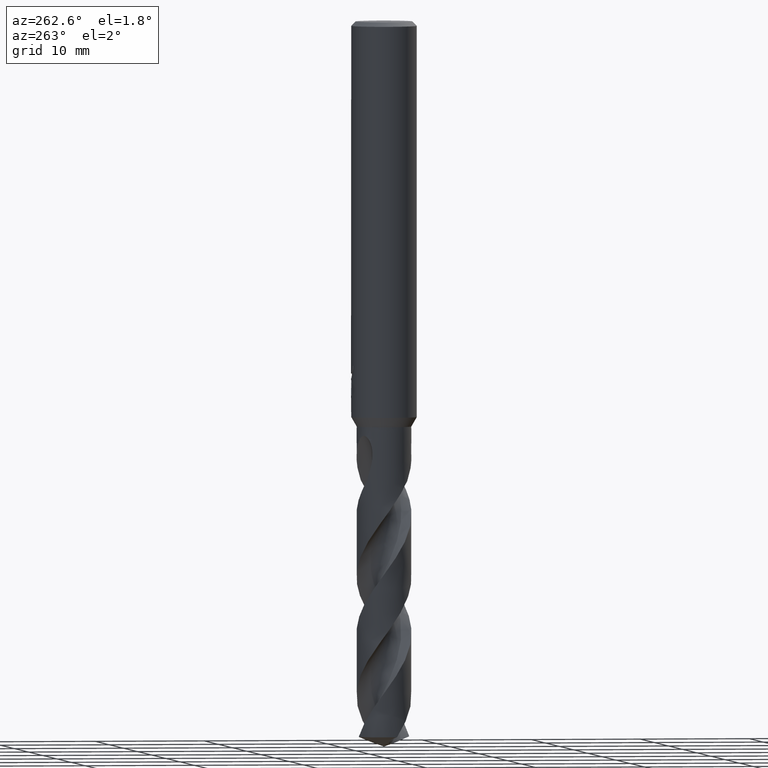
[diagram: clean part render]
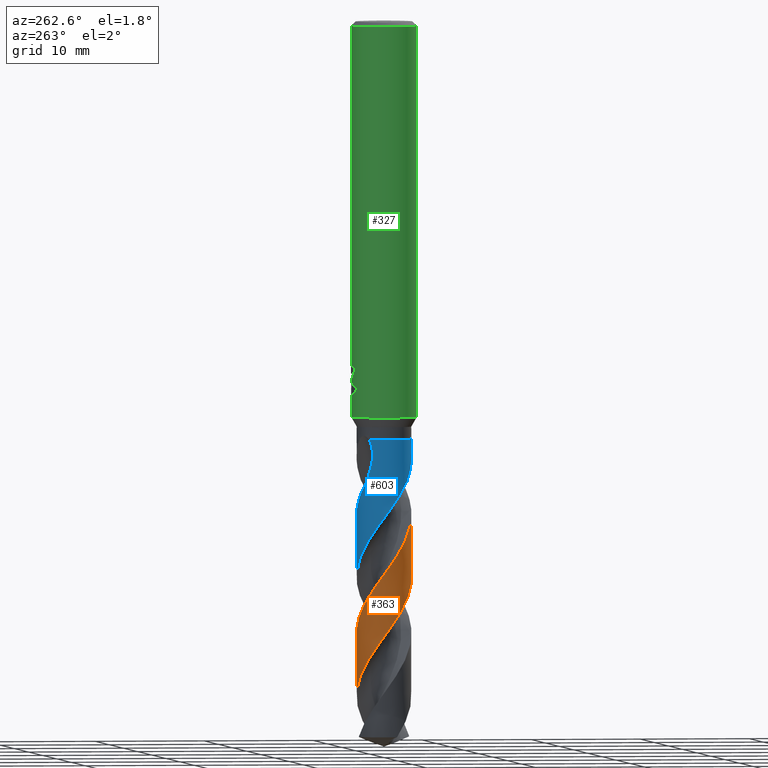
[diagram: same view with three faces highlighted in distinct colors, each labeled with its STEP entity id]
A machine part, auxiliary view with three faces highlighted in distinct colors.
Their STEP definitions:

[orange] entity #363 — the highlighted conical surface has half-angle 0 deg.
#277=VERTEX_POINT('',#768);
#281=EDGE_CURVE('',#277,#429,#772,.T.);
#311=VERTEX_POINT('',#806);
#321=EDGE_CURVE('',#311,#451,#817,.T.);
#363=ADVANCED_FACE('',(#863),#864,.T.);
#429=VERTEX_POINT('',#935);
#451=VERTEX_POINT('',#960);
#541=EDGE_CURVE('',#429,#311,#1060,.T.);
#695=EDGE_CURVE('',#451,#277,#1225,.T.);
#768=CARTESIAN_POINT('',(-1.49229272866229E-012,2.4999846378401,-60.9284538668785));
#772=B_SPLINE_CURVE_WITH_KNOTS('',3,(#1356,#1357,#1358,#1359,#1360,#1361,#1362,#1363,#1364,#1365,#1366,#1367,#1368,#1369,#1370,#1371,#1372,#1373,#1374,#1375,#1376,#1377,#1378,#1379,#1380,#1381,#1382,#1383,#1384,#1385,#1386,#1387,#1388,#1389,#1390,#1391,#1392,#1393,#1394,#1395,#1396,#1397,#1398,#1399,#1400,#1401,#1402,#1403,#1404,#1405,#1406,#1407,#1408,#1409,#1410,#1411,#1412,#1413,#1414,#1415,#1416,#1417,#1418,#1419,#1420,#1421,#1422,#1423,#1424,#1425,#1426,#1427,#1428,#1429,#1430,#1431,#1432,#1433,#1434,#1435,#1436,#1437,#1438,#1439),.UNSPECIFIED.,.F.,.F.,(4,2,2,2,2,2,2,2,2,2,2,2,2,2,2,2,2,2,2,2,2,2,2,2,2,2,2,2,2,2,2,2,2,2,2,2,2,2,2,2,2,4),(0.0,0.705339197520786,0.793382321570578,2.25138278825527,3.00462327397265,4.43627068182508,4.65154079261242,5.90010120325481,6.66712664066002,7.53589064290537,7.96607251350422,8.69509283644515,10.0914412677393,10.1967862482771,11.6549208246733,12.669538107501,13.4584254143811,14.3321507532212,15.0973158277061,16.5459662624766,17.3053546183504,18.0885905116614,18.8115249966454,19.279328148774,19.708212639708,20.6425852317231,21.1109216559262,21.5031201077526,22.7239835989881,23.578576880337,25.9301483865861,26.2469974652199,26.7142829934866,27.2288762379342,27.5732682245291,27.8937227863951,28.088743994366,28.2138346206703,28.3266994819867,28.4725834430864,28.7692788626183,29.2462642896059),.UNSPECIFIED.);
#806=CARTESIAN_POINT('',(5.67745366687904E-014,-2.49992374959582,-44.4337831787576));
#817=B_SPLINE_CURVE_WITH_KNOTS('',3,(#1537,#1538,#1539,#1540,#1541,#1542,#1543,#1544,#1545,#1546,#1547,#1548,#1549,#1550,#1551,#1552,#1553,#1554,#1555,#1556,#1557,#1558,#1559,#1560,#1561,#1562,#1563,#1564,#1565,#1566,#1567,#1568,#1569,#1570,#1571,#1572,#1573,#1574,#1575,#1576,#1577,#1578,#1579,#1580,#1581,#1582,#1583,#1584,#1585,#1586,#1587,#1588,#1589,#1590,#1591,#1592,#1593,#1594,#1595,#1596,#1597,#1598,#1599,#1600,#1601,#1602,#1603,#1604,#1605,#1606,#1607,#1608,#1609,#1610,#1611,#1612,#1613,#1614,#1615,#1616,#1617,#1618,#1619,#1620,#1621,#1622),.UNSPECIFIED.,.F.,.F.,(4,2,2,2,2,2,2,2,2,2,2,2,2,2,2,2,2,2,2,2,2,2,2,2,2,2,2,2,2,2,2,2,2,2,2,2,2,2,2,2,2,2,4),(0.0,0.112260864502837,0.184359362821101,0.213399574215006,0.509736657349901,0.611469455569257,0.67607461145284,0.736403609462447,0.816753332257204,0.905862269064934,0.994709630813049,1.31016933640133,1.52303416237699,1.74012502438616,1.97225138451341,2.5769587221793,3.17582755069472,5.28094098818037,6.25547495015863,6.95390732003399,8.33895148310456,9.04258170054827,9.76890609568415,10.9380613977759,11.4588702272129,12.329443947901,13.7401059158146,14.4385569099418,15.8239700677305,16.527078061405,17.2530805918108,18.3912785093684,19.1171676344524,20.2366142849576,20.8150936552939,21.6680456775689,23.0795614175122,23.7767668212789,25.034613248438,25.982245117534,26.6874134085245,27.7659504028113,28.8549959927232),.UNSPECIFIED.);
#863=FACE_OUTER_BOUND('',#2031,.T.);
#864=CONICAL_SURFACE('',#2032,2.49995,3.69138890024025E-006);
#935=CARTESIAN_POINT('',(4.41179954747735E-014,-2.49994476385777,-50.1265623821918));
#960=CARTESIAN_POINT('',(-6.85427205963761E-014,2.49996362512359,-55.2360933263023));
#1060=LINE('',#3979,#3980);
#1225=LINE('',#4952,#4953);
#1356=CARTESIAN_POINT('',(2.33886570378173,0.883010316855709,-65.0900744143345));
#1357=CARTESIAN_POINT('',(2.29018651938241,1.01194688173756,-64.8995912051756));
#1358=CARTESIAN_POINT('',(2.23092460490224,1.13665062986234,-64.7100951293949));
#1359=CARTESIAN_POINT('',(2.15302469915512,1.27073593422715,-64.4959070597195));
#1360=CARTESIAN_POINT('',(2.1442207592548,1.28553609939877,-64.472111254221));
#1361=CARTESIAN_POINT('',(1.98678778484872,1.54406599651903,-64.0543117836237));
#1362=CARTESIAN_POINT('',(1.79765498664675,1.76071742994334,-63.6691206230355));
#1363=CARTESIAN_POINT('',(1.46106991957155,2.03397333101309,-63.0729881137587));
#1364=CARTESIAN_POINT('',(1.3387134986244,2.11648750832682,-62.8683680680261));
#1365=CARTESIAN_POINT('',(0.964657451981324,2.32332222494383,-62.2793320910932));
#1366=CARTESIAN_POINT('',(0.69897325682646,2.41647387334835,-61.9016570737109));
#1367=CARTESIAN_POINT('',(0.382407185479408,2.47092301410859,-61.4573899510818));
#1368=CARTESIAN_POINT('',(0.340867709908535,2.47699761568448,-61.3992147453919));
#1369=CARTESIAN_POINT('',(0.0563478475743394,2.5112739965807,-61.003299264333));
#1370=CARTESIAN_POINT('',(-0.189608343135859,2.50481682207799,-60.6711720264274));
#1371=CARTESIAN_POINT('',(-0.579565260537321,2.43653634270258,-60.1276073745795));
#1372=CARTESIAN_POINT('',(-0.724948518564298,2.39726021017557,-59.9193839674674));
#1373=CARTESIAN_POINT('',(-1.02506863263222,2.28648165309439,-59.4782613980477));
#1374=CARTESIAN_POINT('',(-1.17831992412939,2.2114564016881,-59.2459558974683));
#1375=CARTESIAN_POINT('',(-1.39467602971787,2.07651048743198,-58.8965223679479));
#1376=CARTESIAN_POINT('',(-1.46390664603325,2.02828694439699,-58.7809489062009));
#1377=CARTESIAN_POINT('',(-1.64327822800571,1.8894094326415,-58.4685922413044));
#1378=CARTESIAN_POINT('',(-1.7483581524877,1.79262949092385,-58.2708240246628));
#1379=CARTESIAN_POINT('',(-2.02940128095464,1.4853431575734,-57.6979776913192));
#1380=CARTESIAN_POINT('',(-2.17925435306539,1.25493433466018,-57.3290026389153));
#1381=CARTESIAN_POINT('',(-2.29705520209781,0.986817472755293,-56.9235364768892));
#1382=CARTESIAN_POINT('',(-2.30507952916041,0.967926413946162,-56.8950832633762));
#1383=CARTESIAN_POINT('',(-2.42113010422204,0.685044448277029,-56.4719082265747));
#1384=CARTESIAN_POINT('',(-2.48356100727685,0.404417834670134,-56.0859939424185));
#1385=CARTESIAN_POINT('',(-2.50659506717053,-0.0800407247237364,-55.4189373381309));
#1386=CARTESIAN_POINT('',(-2.49229892214999,-0.279349955401422,-55.1433153216711));
#1387=CARTESIAN_POINT('',(-2.42492042760174,-0.627386078063755,-54.6568579728654));
#1388=CARTESIAN_POINT('',(-2.38135850488306,-0.776487814845948,-54.4454467138055));
#1389=CARTESIAN_POINT('',(-2.26114064723096,-1.08003494077674,-53.9968472247886));
#1390=CARTESIAN_POINT('',(-2.18185072072324,-1.23235498120629,-53.7593969954083));
#1391=CARTESIAN_POINT('',(-2.00494937631542,-1.50083101470481,-53.3171586147428));
#1392=CARTESIAN_POINT('',(-1.91116266766739,-1.61859837190658,-53.112044618715));
#1393=CARTESIAN_POINT('',(-1.61047048276792,-1.93319634496103,-52.5154743402466));
#1394=CARTESIAN_POINT('',(-1.38013598735321,-2.10382408476296,-52.1229823365801));
#1395=CARTESIAN_POINT('',(-0.99260590740174,-2.29929685617157,-51.5279808320998));
#1396=CARTESIAN_POINT('',(-0.853743195249389,-2.35436476757688,-51.3245139937356));
#1397=CARTESIAN_POINT('',(-0.563799069806127,-2.4403786197949,-50.9082819896367));
#1398=CARTESIAN_POINT('',(-0.412981631343818,-2.47038560908166,-50.6954791630184));
#1399=CARTESIAN_POINT('',(-0.11901365907579,-2.50113763149859,-50.2890201030382));
#1400=CARTESIAN_POINT('',(0.0232164944698478,-2.50387566829468,-50.0950844062439));
#1401=CARTESIAN_POINT('',(0.256853705997476,-2.48841426397878,-49.77417228586));
#1402=CARTESIAN_POINT('',(0.348055349974197,-2.47729039331593,-49.6482845247746));
#1403=CARTESIAN_POINT('',(0.520963507443,-2.44650035895448,-49.4061104721306));
#1404=CARTESIAN_POINT('',(0.602685130837747,-2.42765676547963,-49.2898050791214));
#1405=CARTESIAN_POINT('',(0.859197154920285,-2.35475865633735,-48.9216903022311));
#1406=CARTESIAN_POINT('',(1.02934264093602,-2.28557387656802,-48.6717864102814));
#1407=CARTESIAN_POINT('',(1.27165135869698,-2.15431164505599,-48.2940967555422));
#1408=CARTESIAN_POINT('',(1.34993058627535,-2.10612955998195,-48.1681927189443));
#1409=CARTESIAN_POINT('',(1.4883385472369,-2.01008139786983,-47.9360550917751));
#1410=CARTESIAN_POINT('',(1.5492123002633,-1.96353410862559,-47.8298460469216));
#1411=CARTESIAN_POINT('',(1.78996870490875,-1.7613372557221,-47.395318995317));
#1412=CARTESIAN_POINT('',(1.9496909545453,-1.58285486599002,-47.0717920481496));
#1413=CARTESIAN_POINT('',(2.17448398382074,-1.24468217331734,-46.5144982738418));
#1414=CARTESIAN_POINT('',(2.2526019737145,-1.0968730466019,-46.2833884371949));
#1415=CARTESIAN_POINT('',(2.48803906064716,-0.518638114496798,-45.4222822357989));
#1416=CARTESIAN_POINT('',(2.54062258923928,-0.0555729162293293,-44.8112583819243));
#1417=CARTESIAN_POINT('',(2.45880234864903,0.455723352451119,-44.0945173006001));
#1418=CARTESIAN_POINT('',(2.4468973412289,0.515831332644643,-44.0092168394315));
#1419=CARTESIAN_POINT('',(2.41187184718078,0.663850594871653,-43.7987508428433));
#1420=CARTESIAN_POINT('',(2.38608501919556,0.751429651911781,-43.6736065661477));
#1421=CARTESIAN_POINT('',(2.32136151183696,0.933338264774399,-43.4119001796399));
#1422=CARTESIAN_POINT('',(2.28306880789496,1.02315747934894,-43.2833104282126));
#1423=CARTESIAN_POINT('',(2.21015576180881,1.17009838148852,-43.0614027716611));
#1424=CARTESIAN_POINT('',(2.17906545765208,1.22691164671473,-42.9722679094293));
#1425=CARTESIAN_POINT('',(2.11611124955793,1.33235334070159,-42.7976338622386));
#1426=CARTESIAN_POINT('',(2.08469135568577,1.38087800673129,-42.7129642337649));
#1427=CARTESIAN_POINT('',(2.03294649755781,1.45529685352343,-42.5744180418892));
#1428=CARTESIAN_POINT('',(2.02076851950718,1.47204102932389,-42.5409648806847));
#1429=CARTESIAN_POINT('',(1.99254880361841,1.50985818786231,-42.4690373933075));
#1430=CARTESIAN_POINT('',(1.9811666898461,1.52477099155072,-42.4411907208433));
#1431=CARTESIAN_POINT('',(1.95874872343735,1.55344212704166,-42.3886208636849));
#1432=CARTESIAN_POINT('',(1.94780718237226,1.56714575363147,-42.3639042100505));
#1433=CARTESIAN_POINT('',(1.92194963662612,1.5988184779648,-42.3076760456658));
#1434=CARTESIAN_POINT('',(1.9068374202197,1.61682592622175,-42.2763575164937));
#1435=CARTESIAN_POINT('',(1.85921428427484,1.671909772006,-42.1823545253478));
#1436=CARTESIAN_POINT('',(1.82505699022864,1.70924079166424,-42.1210876010134));
#1437=CARTESIAN_POINT('',(1.72931248242326,1.80725969585964,-41.9648759997831));
#1438=CARTESIAN_POINT('',(1.66442739678851,1.86757587951774,-41.8733433334085));
#1439=CARTESIAN_POINT('',(1.59301279645432,1.9266240155434,-41.785));
#1537=CARTESIAN_POINT('',(1.73763251753517,-1.79727657886597,-41.785));
#1538=CARTESIAN_POINT('',(1.72252333530305,-1.81188450976754,-41.8159612489024));
#1539=CARTESIAN_POINT('',(1.70718617082374,-1.82634501859521,-41.8468795146963));
#1540=CARTESIAN_POINT('',(1.68154298277478,-1.84991098365062,-41.8975809070587));
#1541=CARTESIAN_POINT('',(1.67141317902932,-1.8590692528715,-41.9173653160194));
#1542=CARTESIAN_POINT('',(1.65703232985693,-1.87185662135655,-41.9450887427945));
#1543=CARTESIAN_POINT('',(1.65288519865155,-1.87551971762377,-41.9530420787317));
#1544=CARTESIAN_POINT('',(1.60620232643014,-1.91647797607889,-42.0420979238477));
#1545=CARTESIAN_POINT('',(1.56246716801761,-1.95234792768013,-42.1210954414537));
#1546=CARTESIAN_POINT('',(1.50028167347757,-1.99978310686885,-42.227975883074));
#1547=CARTESIAN_POINT('',(1.48419571491864,-2.01175231019348,-42.2551787188267));
#1548=CARTESIAN_POINT('',(1.45753670999504,-2.03109077354531,-42.2996346269201));
#1549=CARTESIAN_POINT('',(1.44710899818027,-2.03853378536827,-42.3168713218616));
#1550=CARTESIAN_POINT('',(1.42679459870815,-2.0527983694335,-42.3501934975548));
#1551=CARTESIAN_POINT('',(1.41692666331454,-2.05962221572695,-42.3662651215763));
#1552=CARTESIAN_POINT('',(1.39377738134128,-2.07538472771843,-42.4037411168762));
#1553=CARTESIAN_POINT('',(1.38046563646273,-2.08426304220233,-42.4251198296799));
#1554=CARTESIAN_POINT('',(1.35220723016896,-2.10272041107082,-42.4702394281514));
#1555=CARTESIAN_POINT('',(1.33726269703165,-2.11225587309809,-42.4939484196819));
#1556=CARTESIAN_POINT('',(1.30725642988721,-2.13095660651317,-42.5413850380991));
#1557=CARTESIAN_POINT('',(1.2923244978479,-2.14004504858615,-42.5649268475117));
#1558=CARTESIAN_POINT('',(1.22332005301744,-2.18105409024123,-42.6736537518266));
#1559=CARTESIAN_POINT('',(1.16861193977936,-2.21082703702394,-42.7594024168656));
#1560=CARTESIAN_POINT('',(1.07590408055228,-2.25693625153088,-42.9026979906832));
#1561=CARTESIAN_POINT('',(1.03811787140269,-2.27456344180112,-42.9605691828507));
#1562=CARTESIAN_POINT('',(0.960985511374694,-2.30822576491049,-43.0773163559859));
#1563=CARTESIAN_POINT('',(0.921551483921318,-2.32425367031421,-43.1362986553882));
#1564=CARTESIAN_POINT('',(0.8390040255291,-2.3553656240407,-43.2581045466893));
#1565=CARTESIAN_POINT('',(0.796090888358268,-2.37021423763794,-43.320432311903));
#1566=CARTESIAN_POINT('',(0.639376534698698,-2.41969056295324,-43.5458807471));
#1567=CARTESIAN_POINT('',(0.52376972651087,-2.4473157517774,-43.7080488751313));
#1568=CARTESIAN_POINT('',(0.290712059834841,-2.48574152987732,-44.0324353303556));
#1569=CARTESIAN_POINT('',(0.173728396688082,-2.49663090738882,-44.1943179083837));
#1570=CARTESIAN_POINT('',(-0.355258969603241,-2.50860697280931,-44.9235593864885));
#1571=CARTESIAN_POINT('',(-0.763518078083648,-2.41600035109201,-45.4815312883698));
#1572=CARTESIAN_POINT('',(-1.30197298682552,-2.14266978525486,-46.3110638048063));
#1573=CARTESIAN_POINT('',(-1.46172325060606,-2.03700618249477,-46.5731453254474));
#1574=CARTESIAN_POINT('',(-1.7124282504041,-1.82645486623332,-47.0241990257444));
#1575=CARTESIAN_POINT('',(-1.80979502863984,-1.73004530715259,-47.2121272159208));
#1576=CARTESIAN_POINT('',(-2.07544703662313,-1.41982938828046,-47.7733523651048));
#1577=CARTESIAN_POINT('',(-2.21720066132969,-1.1862888779259,-48.1441944793016));
#1578=CARTESIAN_POINT('',(-2.37014142318382,-0.806917133270198,-48.7071592318503));
#1579=CARTESIAN_POINT('',(-2.41103927122509,-0.674999642587216,-48.8963335569884));
#1580=CARTESIAN_POINT('',(-2.47163657768579,-0.401250810810141,-49.2814895592192));
#1581=CARTESIAN_POINT('',(-2.49045213018025,-0.259951396096615,-49.4767087897871));
#1582=CARTESIAN_POINT('',(-2.50795736223287,0.110676771147047,-49.9877567032391));
#1583=CARTESIAN_POINT('',(-2.48731984574039,0.33990093065441,-50.3015001432585));
#1584=CARTESIAN_POINT('',(-2.41265119289138,0.662782306715702,-50.7567138468756));
#1585=CARTESIAN_POINT('',(-2.38358285259224,0.760708154329032,-50.8967340540895));
#1586=CARTESIAN_POINT('',(-2.29020920288703,1.01674146919683,-51.271852605434));
#1587=CARTESIAN_POINT('',(-2.21552212850267,1.17061021820503,-51.5063783220262));
#1588=CARTESIAN_POINT('',(-1.98019957735888,1.55081325226681,-52.1212928079423));
#1589=CARTESIAN_POINT('',(-1.7967370778824,1.76006050497928,-52.4982066592868));
#1590=CARTESIAN_POINT('',(-1.4770632228819,2.02157595699445,-53.0669998620074));
#1591=CARTESIAN_POINT('',(-1.36419782880229,2.09940614803679,-53.2550031556123));
#1592=CARTESIAN_POINT('',(-1.00986821921095,2.30299156290972,-53.8165632892454));
#1593=CARTESIAN_POINT('',(-0.753908621841553,2.39897411049964,-54.1877323344301));
#1594=CARTESIAN_POINT('',(-0.352637915115392,2.4787954483603,-54.7508913869026));
#1595=CARTESIAN_POINT('',(-0.215473381603783,2.49447489545714,-54.9400033887996));
#1596=CARTESIAN_POINT('',(0.0647164103895022,2.50318029136245,-55.3250706796532));
#1597=CARTESIAN_POINT('',(0.207048243522436,2.49542971000956,-55.5202326204788));
#1598=CARTESIAN_POINT('',(0.568580393522606,2.44463391465389,-56.0230316095461));
#1599=CARTESIAN_POINT('',(0.784379146282158,2.38420746395317,-56.3287321982573));
#1600=CARTESIAN_POINT('',(1.12021045813233,2.23947641491702,-56.8310641147544));
#1601=CARTESIAN_POINT('',(1.24581739004214,2.1720968551072,-57.026199557768));
#1602=CARTESIAN_POINT('',(1.54863283591716,1.9747589507911,-57.5239715725305));
#1603=CARTESIAN_POINT('',(1.71594996112536,1.83128955472324,-57.8247579413884));
#1604=CARTESIAN_POINT('',(1.93817520153726,1.58310864327393,-58.2823826843968));
#1605=CARTESIAN_POINT('',(2.00798844690481,1.49355720708313,-58.4379139421343));
#1606=CARTESIAN_POINT('',(2.16505013751213,1.2611053406718,-58.8240279275446));
#1607=CARTESIAN_POINT('',(2.24454505595285,1.11350093817954,-59.053962226006));
#1608=CARTESIAN_POINT('',(2.41489958901247,0.703405976224387,-59.6647036799445));
#1609=CARTESIAN_POINT('',(2.47784934080741,0.432023431873294,-60.0418923218608));
#1610=CARTESIAN_POINT('',(2.50363488443737,0.0196933937977146,-60.6109144037261));
#1611=CARTESIAN_POINT('',(2.50097886872942,-0.117197857899903,-60.7987195115122));
#1612=CARTESIAN_POINT('',(2.46212169595631,-0.498783927510732,-61.3258934330047));
#1613=CARTESIAN_POINT('',(2.40091599958184,-0.739127207020128,-61.6631131779569));
#1614=CARTESIAN_POINT('',(2.2338193918088,-1.1377566552117,-62.2581594987702));
#1615=CARTESIAN_POINT('',(2.14310945946471,-1.30062626711827,-62.5127378022084));
#1616=CARTESIAN_POINT('',(1.95469301301005,-1.56470195337123,-62.9582745862431));
#1617=CARTESIAN_POINT('',(1.86518320287083,-1.67036731272217,-63.1480903350564));
#1618=CARTESIAN_POINT('',(1.61814650371225,-1.91733878363906,-63.6295195009935));
#1619=CARTESIAN_POINT('',(1.45028454642239,-2.04730432846539,-63.9195889519878));
#1620=CARTESIAN_POINT('',(1.08365734364996,-2.26304112289946,-64.5040157659291));
#1621=CARTESIAN_POINT('',(0.886332459629429,-2.34735393689852,-64.7963888537596));
#1622=CARTESIAN_POINT('',(0.680722000651791,-2.40553893292721,-65.0900744143345));
#2031=EDGE_LOOP('',(#5296,#5297,#5298,#5299));
#2032=AXIS2_PLACEMENT_3D('',#5300,#5301,#5302);
#3979=CARTESIAN_POINT('',(3.06328040455955E-016,-2.49995,-51.5450372071672));
#3980=VECTOR('',#5514,1.0);
#4952=CARTESIAN_POINT('',(-3.05962890391696E-016,2.49995,-51.5450372071672));
#4953=VECTOR('',#5677,1.0);
#5296=ORIENTED_EDGE('',*,*,#695,.T.);
#5297=ORIENTED_EDGE('',*,*,#281,.T.);
#5298=ORIENTED_EDGE('',*,*,#541,.T.);
#5299=ORIENTED_EDGE('',*,*,#321,.T.);
#5300=CARTESIAN_POINT('',(0.0,0.0,-51.5450372071672));
#5301=DIRECTION('',(0.0,-0.0,-1.0));
#5302=DIRECTION('',(0.0,1.0,0.0));
#5514=DIRECTION('',(-4.52049830165335E-022,3.69138890023187E-006,0.999999999993187));
#5677=DIRECTION('',(-4.52049830165335E-022,3.69138890023187E-006,-0.999999999993187));

[blue] entity #603 — the highlighted conical surface has half-angle 0 deg.
#343=VERTEX_POINT('',#842);
#347=EDGE_CURVE('',#343,#561,#847,.T.);
#375=VERTEX_POINT('',#876);
#395=EDGE_CURVE('',#637,#469,#898,.T.);
#409=VERTEX_POINT('',#913);
#435=VERTEX_POINT('',#942);
#437=EDGE_CURVE('',#409,#567,#944,.T.);
#469=VERTEX_POINT('',#979);
#497=EDGE_CURVE('',#567,#637,#1011,.T.);
#535=EDGE_CURVE('',#375,#409,#1054,.T.);
#561=VERTEX_POINT('',#1080);
#567=VERTEX_POINT('',#1086);
#603=ADVANCED_FACE('',(#1124),#1125,.T.);
#637=VERTEX_POINT('',#1163);
#665=EDGE_CURVE('',#561,#435,#1193,.T.);
#677=EDGE_CURVE('',#469,#343,#1206,.T.);
#723=EDGE_CURVE('',#435,#375,#1258,.T.);
#842=CARTESIAN_POINT('',(-1.73763251753517,1.79727657886597,-41.785));
#847=B_SPLINE_CURVE_WITH_KNOTS('',3,(#1892,#1893,#1894,#1895,#1896,#1897,#1898,#1899,#1900,#1901,#1902,#1903,#1904,#1905,#1906,#1907,#1908,#1909,#1910,#1911,#1912,#1913,#1914,#1915,#1916,#1917,#1918,#1919,#1920,#1921,#1922,#1923,#1924,#1925,#1926,#1927,#1928,#1929,#1930,#1931,#1932,#1933,#1934,#1935,#1936,#1937,#1938,#1939,#1940,#1941,#1942,#1943,#1944,#1945,#1946,#1947,#1948,#1949,#1950,#1951,#1952,#1953,#1954,#1955,#1956,#1957,#1958,#1959,#1960,#1961,#1962,#1963,#1964,#1965,#1966,#1967,#1968,#1969,#1970,#1971,#1972,#1973,#1974,#1975,#1976,#1977),.UNSPECIFIED.,.F.,.F.,(4,2,2,2,2,2,2,2,2,2,2,2,2,2,2,2,2,2,2,2,2,2,2,2,2,2,2,2,2,2,2,2,2,2,2,2,2,2,2,2,2,2,4),(0.0,0.112260864397981,0.184359363803261,0.213399574284535,0.509736657764034,0.611469456130569,0.676074612108671,0.736403610198,0.816753333084748,0.905862270015692,0.994709631882351,1.31016933782621,1.52303416408569,1.74012502638929,1.97225138631104,2.57695872480792,3.17582754790001,5.2809410103534,6.255474968566,6.95390734003384,8.33895150304389,9.04258172192699,9.76890611807947,10.9380614368724,11.458870248475,12.329443972972,13.7401059421701,14.4385569374902,15.8239700963502,16.5270780909587,17.2530806224029,18.3912785393214,19.1171676654268,20.2366143270635,20.8150936857998,21.6680457080309,23.0795614502067,23.7767668551512,25.0346132842892,25.9822451545084,26.6874134462999,27.7659504420145,28.8549960331307),.UNSPECIFIED.);
#876=CARTESIAN_POINT('',(-1.59301279645432,-1.9266240155434,-41.785));
#898=B_SPLINE_CURVE_WITH_KNOTS('',3,(#2766,#2767,#2768,#2769,#2770,#2771,#2772,#2773),.UNSPECIFIED.,.F.,.F.,(4,2,2,4),(0.0,0.466804786851938,1.12021701218288,1.74699842426996),.UNSPECIFIED.);
#913=CARTESIAN_POINT('',(7.40449683655628E-013,-2.4999041622737,-39.1275630436533));
#942=CARTESIAN_POINT('',(-4.52282263023623E-014,2.49994476385778,-50.1265623821918));
#944=LINE('',#3561,#3562);
#979=CARTESIAN_POINT('',(-2.03401822218082,1.45338036163872,-40.4161889313329));
#1011=CIRCLE('',#3841,2.4999);
#1054=B_SPLINE_CURVE_WITH_KNOTS('',3,(#3958,#3959,#3960,#3961,#3962,#3963,#3964,#3965,#3966,#3967,#3968,#3969,#3970,#3971),.UNSPECIFIED.,.F.,.F.,(4,2,2,2,2,2,4),(0.0,1.22487134503149,1.8936704589557,2.4994231496837,3.20314412049245,4.04846175270952,4.48661916354122),.UNSPECIFIED.);
#1080=CARTESIAN_POINT('',(-4.50061804107274E-014,2.49992374959581,-44.4337831787576));
#1086=CARTESIAN_POINT('',(3.05941161432633E-016,-2.4999,-38.0));
#1124=FACE_OUTER_BOUND('',#4370,.T.);
#1125=CONICAL_SURFACE('',#4371,2.49995,3.69138890024025E-006);
#1163=CARTESIAN_POINT('',(-1.89294965054159,1.63286301645744,-38.0));
#1193=LINE('',#4779,#4780);
#1206=B_SPLINE_CURVE_WITH_KNOTS('',3,(#4812,#4813,#4814,#4815),.UNSPECIFIED.,.F.,.F.,(4,4),(0.0,1.43665684845065),.UNSPECIFIED.);
#1258=B_SPLINE_CURVE_WITH_KNOTS('',3,(#4993,#4994,#4995,#4996,#4997,#4998,#4999,#5000,#5001,#5002,#5003,#5004,#5005,#5006,#5007,#5008,#5009,#5010,#5011,#5012,#5013,#5014,#5015,#5016,#5017,#5018,#5019,#5020,#5021,#5022,#5023,#5024,#5025,#5026,#5027,#5028,#5029,#5030,#5031,#5032,#5033,#5034,#5035,#5036,#5037,#5038,#5039,#5040,#5041,#5042,#5043,#5044,#5045,#5046,#5047,#5048,#5049,#5050,#5051,#5052,#5053,#5054,#5055,#5056,#5057,#5058,#5059,#5060,#5061,#5062,#5063,#5064,#5065,#5066,#5067,#5068,#5069,#5070,#5071,#5072,#5073,#5074),.UNSPECIFIED.,.F.,.F.,(4,2,2,2,2,2,2,2,2,2,2,2,2,2,2,2,2,2,2,2,2,2,2,2,2,2,2,2,2,2,2,2,2,2,2,2,2,2,2,2,4),(0.0,0.705339197067454,0.793382321139927,2.25138278752314,3.00462328712798,4.43626943265148,4.65154013104783,5.90009963176698,6.6671058830871,7.53581158334608,7.96590050155425,8.69394951695833,10.0801426134938,10.1881721412805,11.6492357720889,12.1945071413989,13.4916434380483,14.0841886344595,15.3916855201915,15.9972169755421,17.3497751212634,18.1393860448176,18.8605143900051,19.3125841918353,20.1058236514083,20.8125461307724,22.2865912593847,23.1269554959695,23.5124698716947,25.8935172841633,26.4819857242191,26.9585591441111,27.5557320804792,27.9155669110931,28.0952590369785,28.1166080844096,28.1413705103888,28.1632492416796,28.1908979290136,28.2479506763335,28.3435305855534),.UNSPECIFIED.);
#1892=CARTESIAN_POINT('',(-1.73763251753517,1.79727657886597,-41.785));
#1893=CARTESIAN_POINT('',(-1.72252333531716,1.81188450975389,-41.8159612488735));
#1894=CARTESIAN_POINT('',(-1.70718617085513,1.82634501856555,-41.8468795146329));
#1895=CARTESIAN_POINT('',(-1.68154298267998,1.84991098373826,-41.897580907247));
#1896=CARTESIAN_POINT('',(-1.67141317876823,1.85906925310798,-41.9173653165301));
#1897=CARTESIAN_POINT('',(-1.65703232954043,1.87185662163627,-41.9450887434018));
#1898=CARTESIAN_POINT('',(-1.6528851984722,1.87551971778129,-41.9530420790741));
#1899=CARTESIAN_POINT('',(-1.60620232636707,1.91647797613241,-42.0420979239649));
#1900=CARTESIAN_POINT('',(-1.56246716797805,1.95234792771077,-42.1210954415223));
#1901=CARTESIAN_POINT('',(-1.50028167347057,1.99978310687406,-42.2279758830858));
#1902=CARTESIAN_POINT('',(-1.48419571490945,2.01175231020023,-42.2551787188422));
#1903=CARTESIAN_POINT('',(-1.45753670999042,2.03109077354861,-42.2996346269278));
#1904=CARTESIAN_POINT('',(-1.44710899817522,2.03853378537185,-42.3168713218699));
#1905=CARTESIAN_POINT('',(-1.42679459870447,2.05279836943604,-42.3501934975608));
#1906=CARTESIAN_POINT('',(-1.41692666331163,2.05962221572898,-42.366265121581));
#1907=CARTESIAN_POINT('',(-1.39377738133427,2.07538472772317,-42.4037411168876));
#1908=CARTESIAN_POINT('',(-1.38046563645428,2.08426304220794,-42.4251198296934));
#1909=CARTESIAN_POINT('',(-1.35220723015523,2.1027204110797,-42.4702394281732));
#1910=CARTESIAN_POINT('',(-1.33726269701465,2.11225587310889,-42.4939484197089));
#1911=CARTESIAN_POINT('',(-1.3072564298652,2.13095660652669,-42.5413850381339));
#1912=CARTESIAN_POINT('',(-1.29232449782342,2.14004504860097,-42.5649268475504));
#1913=CARTESIAN_POINT('',(-1.22332005298629,2.18105409025878,-42.6736537518755));
#1914=CARTESIAN_POINT('',(-1.1686119397487,2.21082703703966,-42.7594024169131));
#1915=CARTESIAN_POINT('',(-1.07590408053925,2.25693625153703,-42.9026979907032));
#1916=CARTESIAN_POINT('',(-1.03811787139033,2.27456344180679,-42.9605691828696));
#1917=CARTESIAN_POINT('',(-0.960985511359174,2.308225764917,-43.0773163560093));
#1918=CARTESIAN_POINT('',(-0.921551483904369,2.32425367032093,-43.1362986554134));
#1919=CARTESIAN_POINT('',(-0.839004025607875,2.35536562401067,-43.2581045465728));
#1920=CARTESIAN_POINT('',(-0.796090888532881,2.37021423757732,-43.3204323116492));
#1921=CARTESIAN_POINT('',(-0.639376534975514,2.41969056288015,-43.5458807467084));
#1922=CARTESIAN_POINT('',(-0.523769726785364,2.4473157517187,-43.7080488747472));
#1923=CARTESIAN_POINT('',(-0.290712061321603,2.48574152964552,-44.0324353282882));
#1924=CARTESIAN_POINT('',(-0.173728399406881,2.49663090714221,-44.1943179046256));
#1925=CARTESIAN_POINT('',(0.355258969957849,2.50860697346788,-44.9235593870129));
#1926=CARTESIAN_POINT('',(0.76351808274427,2.41600035035728,-45.4815312945286));
#1927=CARTESIAN_POINT('',(1.30197299347946,2.1426697811221,-46.31106381553));
#1928=CARTESIAN_POINT('',(1.46172325610689,2.03700617845406,-46.573145334837));
#1929=CARTESIAN_POINT('',(1.71242825474656,1.82645486217131,-47.0241990339206));
#1930=CARTESIAN_POINT('',(1.80979503284007,1.73004530276872,-47.2121272242569));
#1931=CARTESIAN_POINT('',(2.07544703988881,1.41982938343384,-47.7733523730699));
#1932=CARTESIAN_POINT('',(2.21720066386726,1.18628887309635,-48.1441944867819));
#1933=CARTESIAN_POINT('',(2.37014142484875,0.806917128396147,-48.7071592389239));
#1934=CARTESIAN_POINT('',(2.41103927264376,0.674999637538866,-48.8963335641817));
#1935=CARTESIAN_POINT('',(2.47163657854173,0.401250805539074,-49.2814895665421));
#1936=CARTESIAN_POINT('',(2.49045213073503,0.259951390782246,-49.4767087971323));
#1937=CARTESIAN_POINT('',(2.50795736213588,-0.110676779446218,-49.9877567146545));
#1938=CARTESIAN_POINT('',(2.48731984448235,-0.339900941854813,-50.3015001586411));
#1939=CARTESIAN_POINT('',(2.41265118995953,-0.662782316827547,-50.7567138613136));
#1940=CARTESIAN_POINT('',(2.38358285035791,-0.760708160842329,-50.8967340635618));
#1941=CARTESIAN_POINT('',(2.29020920139356,-1.01674147264556,-51.2718526106045));
#1942=CARTESIAN_POINT('',(2.21552212654012,-1.17061022199388,-51.506378327884));
#1943=CARTESIAN_POINT('',(1.98019957447149,-1.55081325593043,-52.1212928143052));
#1944=CARTESIAN_POINT('',(1.79673707470065,-1.76006050820629,-52.4982066654968));
#1945=CARTESIAN_POINT('',(1.4770632193138,-2.02157595960438,-53.0669998680844));
#1946=CARTESIAN_POINT('',(1.36419782506063,-2.09940615047098,-53.2550031617408));
#1947=CARTESIAN_POINT('',(1.00986821521097,-2.30299156464392,-53.8165632951909));
#1948=CARTESIAN_POINT('',(0.75390861783778,-2.39897411173886,-54.1877323401761));
#1949=CARTESIAN_POINT('',(0.352637911157766,-2.47879544892285,-54.7508913923925));
#1950=CARTESIAN_POINT('',(0.215473377630436,-2.49447489579981,-54.9400033942706));
#1951=CARTESIAN_POINT('',(-0.0647164143704662,-2.50318029125977,-55.3250706851135));
#1952=CARTESIAN_POINT('',(-0.207048247494991,-2.49542970968005,-55.5202326259576));
#1953=CARTESIAN_POINT('',(-0.56858039697824,-2.44463391380991,-56.0230316144241));
#1954=CARTESIAN_POINT('',(-0.784379149224132,-2.38420746294383,-56.3287322025186));
#1955=CARTESIAN_POINT('',(-1.12021046051182,-2.23947641372666,-56.8310641184024));
#1956=CARTESIAN_POINT('',(-1.24581739234765,-2.17209685378461,-57.026199561421));
#1957=CARTESIAN_POINT('',(-1.54863283957287,-1.97475894813139,-57.5239715787508));
#1958=CARTESIAN_POINT('',(-1.71594996590589,-1.83128955046827,-57.8247579501289));
#1959=CARTESIAN_POINT('',(-1.93817520512301,-1.58310863870926,-58.2823826923513));
#1960=CARTESIAN_POINT('',(-2.00798844882317,-1.49355720431913,-58.4379139467633));
#1961=CARTESIAN_POINT('',(-2.16505013784096,-1.26110534007432,-58.8240279284813));
#1962=CARTESIAN_POINT('',(-2.24454505612968,-1.1135009377857,-59.0539622265998));
#1963=CARTESIAN_POINT('',(-2.41489958907924,-0.703405976010952,-59.6647036802505));
#1964=CARTESIAN_POINT('',(-2.4778493408574,-0.432023431613768,-60.0418923222221));
#1965=CARTESIAN_POINT('',(-2.503634884442,-0.0196933934571156,-60.6109144041946));
#1966=CARTESIAN_POINT('',(-2.50097886871375,0.117197858275783,-60.7987195120287));
#1967=CARTESIAN_POINT('',(-2.46212169587073,0.498783927950691,-61.3258934336175));
#1968=CARTESIAN_POINT('',(-2.40091599944267,0.739127207484304,-61.663113178621));
#1969=CARTESIAN_POINT('',(-2.23381939159023,1.13775665563353,-62.2581594994216));
#1970=CARTESIAN_POINT('',(-2.14310945923877,1.3006262674841,-62.5127378027975));
#1971=CARTESIAN_POINT('',(-1.95469301279321,1.56470195363854,-62.958274586715));
#1972=CARTESIAN_POINT('',(-1.8651832026667,1.67036731294681,-63.1480903354741));
#1973=CARTESIAN_POINT('',(-1.61814650352558,1.91733878379423,-63.6295195013268));
#1974=CARTESIAN_POINT('',(-1.45028454623987,2.04730432859257,-63.9195889522927));
#1975=CARTESIAN_POINT('',(-1.08365734352574,2.26304112295259,-64.5040157661129));
#1976=CARTESIAN_POINT('',(-0.88633245956452,2.34735393691689,-64.7963888538523));
#1977=CARTESIAN_POINT('',(-0.680722000651791,2.40553893292721,-65.0900744143345));
#2766=CARTESIAN_POINT('',(-1.89294965054159,1.63286301645744,-38.0));
#2767=CARTESIAN_POINT('',(-1.95470844159128,1.56126782423688,-38.1235792730907));
#2768=CARTESIAN_POINT('',(-2.00344577584956,1.49656610404442,-38.277223858844));
#2769=CARTESIAN_POINT('',(-2.09117261224026,1.37271526928276,-38.7006381012966));
#2770=CARTESIAN_POINT('',(-2.12042170302936,1.32414080810256,-39.0000700500356));
#2771=CARTESIAN_POINT('',(-2.12488832539141,1.31696518674969,-39.6560132978575));
#2772=CARTESIAN_POINT('',(-2.10400949258269,1.35542445368482,-40.0181090060009));
#2773=CARTESIAN_POINT('',(-2.03401822218082,1.45338036163873,-40.4161889313329));
#3561=CARTESIAN_POINT('',(3.05947284464402E-016,-2.49995,-51.5450372071672));
#3562=VECTOR('',#5372,1.0);
#3841=AXIS2_PLACEMENT_3D('',#5454,#5455,#5456);
#3958=CARTESIAN_POINT('',(-1.59301279645432,-1.9266240155434,-41.785));
#3959=CARTESIAN_POINT('',(-1.42810890895895,-2.06297173670078,-41.4372686424366));
#3960=CARTESIAN_POINT('',(-1.23850396307915,-2.18417752815992,-41.1130710216752));
#3961=CARTESIAN_POINT('',(-0.907887514823849,-2.33273979380253,-40.5714825716518));
#3962=CARTESIAN_POINT('',(-0.788916400666737,-2.37547539181747,-40.3809353995761));
#3963=CARTESIAN_POINT('',(-0.558604370020976,-2.43934441173361,-40.0120901649774));
#3964=CARTESIAN_POINT('',(-0.44829161832696,-2.46190905945035,-39.8355107915733));
#3965=CARTESIAN_POINT('',(-0.20951328184251,-2.4944746300709,-39.4549417195726));
#3966=CARTESIAN_POINT('',(-0.0790527645682052,-2.50212001513107,-39.2479728388036));
#3967=CARTESIAN_POINT('',(0.210665456619861,-2.49602519936687,-38.8052023996043));
#3968=CARTESIAN_POINT('',(0.382438157885558,-2.4771760560147,-38.5532640287168));
#3969=CARTESIAN_POINT('',(0.651860622151955,-2.41526150425024,-38.2153659264753));
#3970=CARTESIAN_POINT('',(0.751088758238555,-2.38692643364793,-38.1008277311453));
#3971=CARTESIAN_POINT('',(0.854254278690823,-2.34941474357731,-38.0));
#4370=EDGE_LOOP('',(#5569,#5570,#5571,#5572,#5573,#5574,#5575,#5576));
#4371=AXIS2_PLACEMENT_3D('',#5577,#5578,#5579);
#4779=CARTESIAN_POINT('',(-3.06343646383248E-016,2.49995,-51.5450372071672));
#4780=VECTOR('',#5651,1.0);
#4812=CARTESIAN_POINT('',(-2.03401822223344,1.45338036156508,-40.4161889313619));
#4813=CARTESIAN_POINT('',(-1.95342629766734,1.56617235840346,-40.8745712395932));
#4814=CARTESIAN_POINT('',(-1.85629255985419,1.68255205795631,-41.3356808187035));
#4815=CARTESIAN_POINT('',(-1.73763251753517,1.79727657886597,-41.785));
#4993=CARTESIAN_POINT('',(-2.33886570378176,-0.883010316855671,-65.0900744143346));
#4994=CARTESIAN_POINT('',(-2.29018651941373,-1.01194688165468,-64.899591205298));
#4995=CARTESIAN_POINT('',(-2.23092460497212,-1.13665062971624,-64.7100951296172));
#4996=CARTESIAN_POINT('',(-2.1530246992714,-1.27073593403021,-64.4959070600355));
#4997=CARTESIAN_POINT('',(-2.14422075936886,-1.28553609920864,-64.4721112545271));
#4998=CARTESIAN_POINT('',(-1.98678778498846,-1.54406599633667,-64.0543117839365));
#4999=CARTESIAN_POINT('',(-1.7976549868061,-1.76071742978131,-63.6691206233433));
#5000=CARTESIAN_POINT('',(-1.46106991761269,-2.03397333262025,-63.0729881102762));
#5001=CARTESIAN_POINT('',(-1.33871349423607,-2.11648751129627,-62.8683680607111));
#5002=CARTESIAN_POINT('',(-0.964657660492261,-2.32332210861559,-62.2793324202098));
#5003=CARTESIAN_POINT('',(-0.698973713689662,-2.41647371340849,-61.9016577222645));
#5004=CARTESIAN_POINT('',(-0.382407781231478,-2.47092292387326,-61.4573907860452));
#5005=CARTESIAN_POINT('',(-0.340868195840411,-2.47699755069347,-61.3992154232817));
#5006=CARTESIAN_POINT('',(-0.056348433135587,-2.51127396344896,-61.0033000692642));
#5007=CARTESIAN_POINT('',(0.189607553031624,-2.50481686222219,-60.6711730976838));
#5008=CARTESIAN_POINT('',(0.579560574119715,-2.43653722360843,-60.1276139254984));
#5009=CARTESIAN_POINT('',(0.72494026829224,-2.39726246546098,-59.9193957858108));
#5010=CARTESIAN_POINT('',(1.02504655634025,-2.28649069645021,-59.4782941951181));
#5011=CARTESIAN_POINT('',(1.17828835600058,-2.21147233878619,-59.2460040832562));
#5012=CARTESIAN_POINT('',(1.39462177848924,-2.07654618220098,-58.8966113737013));
#5013=CARTESIAN_POINT('',(1.46383890757014,-2.02833508442498,-58.7810628734268));
#5014=CARTESIAN_POINT('',(1.64305173694417,-1.88959207455748,-58.4689934029809));
#5015=CARTESIAN_POINT('',(1.7480041829164,-1.79295929273067,-58.271490477962));
#5016=CARTESIAN_POINT('',(2.02765337381636,-1.48736283540185,-57.7016448403498));
#5017=CARTESIAN_POINT('',(2.17675215974187,-1.2588531611843,-57.3352544267904));
#5018=CARTESIAN_POINT('',(2.29468417630767,-0.992329559019766,-56.9318510739895));
#5019=CARTESIAN_POINT('',(2.30295054965085,-0.97299133897287,-56.9026920016989));
#5020=CARTESIAN_POINT('',(2.41974444841605,-0.68991523508859,-56.4788123552638));
#5021=CARTESIAN_POINT('',(2.4827461711198,-0.409412690495787,-56.0928565758128));
#5022=CARTESIAN_POINT('',(2.50218422872534,-0.0171166163841849,-55.5527197643311));
#5023=CARTESIAN_POINT('',(2.50061848827988,0.0894609548753868,-55.4051585521973));
#5024=CARTESIAN_POINT('',(2.47258558300501,0.447144106676024,-54.909605765415));
#5025=CARTESIAN_POINT('',(2.4148013680497,0.694737030915162,-54.5668861005288));
#5026=CARTESIAN_POINT('',(2.27760108182114,1.03716435036888,-54.0599008925659));
#5027=CARTESIAN_POINT('',(2.22728008054499,1.14115918632063,-53.9000618284899));
#5028=CARTESIAN_POINT('',(2.04420851600865,1.46130061996071,-53.390712037741));
#5029=CARTESIAN_POINT('',(1.88533901313571,1.66131855510462,-53.0464639324678));
#5030=CARTESIAN_POINT('',(1.61227982878016,1.91421004200908,-52.5348963107895));
#5031=CARTESIAN_POINT('',(1.52051473189964,1.9878476797528,-52.3720603472176));
#5032=CARTESIAN_POINT('',(1.20901208157233,2.20376702993984,-51.8487820122252));
#5033=CARTESIAN_POINT('',(0.971688557130232,2.31825566416415,-51.4941662036529));
#5034=CARTESIAN_POINT('',(0.574074081387713,2.43795087913269,-50.9228469333753));
#5035=CARTESIAN_POINT('',(0.423951345468637,2.46849021318531,-50.7108135997946));
#5036=CARTESIAN_POINT('',(0.132737446093259,2.50033233182608,-50.3078546606294));
#5037=CARTESIAN_POINT('',(-0.00744624843985667,2.50385953433475,-50.1166243972868));
#5038=CARTESIAN_POINT('',(-0.235072303680106,2.49041743578429,-49.804154112705));
#5039=CARTESIAN_POINT('',(-0.322300937021889,2.48062603910392,-49.6839194969346));
#5040=CARTESIAN_POINT('',(-0.560271952156856,2.4411909636006,-49.3516434524049));
#5041=CARTESIAN_POINT('',(-0.709375224730758,2.40213008065173,-49.1384821213758));
#5042=CARTESIAN_POINT('',(-0.98317152774021,2.30258834019788,-48.7380818490494));
#5043=CARTESIAN_POINT('',(-1.10817670215267,2.24511367155772,-48.5504571866369));
#5044=CARTESIAN_POINT('',(-1.4776600538367,2.0367646061557,-47.9688885383383));
#5045=CARTESIAN_POINT('',(-1.70122474260381,1.85412109082809,-47.5737327089783));
#5046=CARTESIAN_POINT('',(-1.99616335626811,1.51384661083037,-46.9566524289922));
#5047=CARTESIAN_POINT('',(-2.09065772907504,1.38033475722806,-46.7341315470007));
#5048=CARTESIAN_POINT('',(-2.20836769235021,1.17403016729757,-46.4065933733178));
#5049=CARTESIAN_POINT('',(-2.24235575534413,1.10771172241147,-46.3032037168182));
#5050=CARTESIAN_POINT('',(-2.46440497019878,0.622373707279598,-45.5649438217405));
#5051=CARTESIAN_POINT('',(-2.53689484101531,0.15942215533147,-44.9506343893688));
#5052=CARTESIAN_POINT('',(-2.46865486738844,-0.410223194938036,-44.1590448383229));
#5053=CARTESIAN_POINT('',(-2.44753224229699,-0.521604767257759,-44.0012674652668));
#5054=CARTESIAN_POINT('',(-2.39566460204549,-0.720306041270175,-43.7181079108659));
#5055=CARTESIAN_POINT('',(-2.367409825996,-0.808501262630983,-43.5917896803095));
#5056=CARTESIAN_POINT('',(-2.2921215634324,-1.00470770934608,-43.308547468957));
#5057=CARTESIAN_POINT('',(-2.24349532738679,-1.10898136845446,-43.1578285819941));
#5058=CARTESIAN_POINT('',(-2.15326583726819,-1.27198428116621,-42.8993481075791));
#5059=CARTESIAN_POINT('',(-2.1175666436352,-1.33039309085748,-42.8017300139555));
#5060=CARTESIAN_POINT('',(-2.06214467795192,-1.41359606396385,-42.6525047179898));
#5061=CARTESIAN_POINT('',(-2.04345011854873,-1.44046235586593,-42.6025385631179));
#5062=CARTESIAN_POINT('',(-2.02233273510932,-1.46961519980199,-42.5461035415484));
#5063=CARTESIAN_POINT('',(-2.01551642420652,-1.47903259207708,-42.5277380610302));
#5064=CARTESIAN_POINT('',(-1.99471950686108,-1.5069926528753,-42.4744216398202));
#5065=CARTESIAN_POINT('',(-1.98318630155062,-1.52214706326465,-42.4460597634404));
#5066=CARTESIAN_POINT('',(-1.96067864081638,-1.55100453566303,-42.3930469474543));
#5067=CARTESIAN_POINT('',(-1.94981519695124,-1.56464560566354,-42.3683950926759));
#5068=CARTESIAN_POINT('',(-1.92446653391734,-1.59577896060922,-42.3130159374346));
#5069=CARTESIAN_POINT('',(-1.90981001707499,-1.61330353828892,-42.2824627816051));
#5070=CARTESIAN_POINT('',(-1.86321241132956,-1.66743255269772,-42.1898301555769));
#5071=CARTESIAN_POINT('',(-1.82964914944576,-1.7043004560509,-42.1291412409542));
#5072=CARTESIAN_POINT('',(-1.73317511116033,-1.80366253559055,-41.9703392436052));
#5073=CARTESIAN_POINT('',(-1.66656418716018,-1.86580910510559,-41.8759866470075));
#5074=CARTESIAN_POINT('',(-1.59301279645432,-1.9266240155434,-41.785));
#5372=DIRECTION('',(-4.52049830165335E-022,3.69138890023187E-006,0.999999999993187));
#5454=CARTESIAN_POINT('',(0.0,0.0,-38.0));
#5455=DIRECTION('',(0.0,0.0,-1.0));
#5456=DIRECTION('',(0.0,1.0,0.0));
#5569=ORIENTED_EDGE('',*,*,#665,.T.);
#5570=ORIENTED_EDGE('',*,*,#723,.T.);
#5571=ORIENTED_EDGE('',*,*,#535,.T.);
#5572=ORIENTED_EDGE('',*,*,#437,.T.);
#5573=ORIENTED_EDGE('',*,*,#497,.T.);
#5574=ORIENTED_EDGE('',*,*,#395,.T.);
#5575=ORIENTED_EDGE('',*,*,#677,.T.);
#5576=ORIENTED_EDGE('',*,*,#347,.T.);
#5577=CARTESIAN_POINT('',(0.0,0.0,-51.5450372071672));
#5578=DIRECTION('',(0.0,-0.0,-1.0));
#5579=DIRECTION('',(0.0,1.0,0.0));
#5651=DIRECTION('',(-4.52049830165335E-022,3.69138890023187E-006,-0.999999999993187));

[green] entity #327 — the highlighted cylindrical surface (edge-blend (fillet) strip) has radius 3 mm, axis along (-0, -0, 1).
#275=VERTEX_POINT('',#766);
#283=VERTEX_POINT('',#774);
#295=VERTEX_POINT('',#789);
#323=EDGE_CURVE('',#671,#565,#819,.T.);
#327=ADVANCED_FACE('',(#824),#825,.T.);
#337=EDGE_CURVE('',#663,#477,#836,.T.);
#339=VERTEX_POINT('',#838);
#371=EDGE_CURVE('',#565,#283,#872,.T.);
#391=EDGE_CURVE('',#283,#663,#894,.T.);
#417=VERTEX_POINT('',#921);
#427=EDGE_CURVE('',#295,#275,#933,.T.);
#465=EDGE_CURVE('',#417,#483,#975,.T.);
#477=VERTEX_POINT('',#988);
#483=VERTEX_POINT('',#994);
#519=EDGE_CURVE('',#275,#671,#1037,.T.);
#527=EDGE_CURVE('',#295,#483,#1045,.T.);
#537=VERTEX_POINT('',#1056);
#549=EDGE_CURVE('',#339,#417,#1068,.T.);
#565=VERTEX_POINT('',#1084);
#577=EDGE_CURVE('',#621,#537,#1097,.T.);
#621=VERTEX_POINT('',#1144);
#645=EDGE_CURVE('',#477,#621,#1172,.T.);
#663=VERTEX_POINT('',#1191);
#671=VERTEX_POINT('',#1200);
#691=EDGE_CURVE('',#537,#339,#1221,.T.);
#766=CARTESIAN_POINT('',(3.67381906146713E-016,-3.0,-0.399999999999999));
#774=CARTESIAN_POINT('',(-0.486378944383045,2.96031003823262,-31.6432837483006));
#789=CARTESIAN_POINT('',(3.67381906146713E-016,-3.0,-36.0));
#819=LINE('',#1625,#1626);
#824=FACE_OUTER_BOUND('',#1631,.T.);
#825=CYLINDRICAL_SURFACE('',#1632,3.0);
#836=CIRCLE('',#1866,3.0);
#838=CARTESIAN_POINT('',(-1.337052752443,2.68557069115386,-33.3720803908795));
#872=B_SPLINE_CURVE_WITH_KNOTS('',3,(#2043,#2044,#2045,#2046,#2047,#2048,#2049,#2050,#2051,#2052,#2053,#2054,#2055,#2056,#2057,#2058,#2059,#2060,#2061,#2062,#2063,#2064,#2065,#2066,#2067,#2068,#2069),.UNSPECIFIED.,.F.,.F.,(4,2,3,2,2,2,2,2,2,2,2,2,4),(-0.54422824842136,-0.27211412421068,0.0,0.272114124210678,0.544228248421357,0.817906359646673,1.09158447087199,1.36255924571499,1.63353402055798,1.90530456554772,2.17707511053746,2.4488456555272,2.72061620051693),.UNSPECIFIED.);
#894=B_SPLINE_CURVE_WITH_KNOTS('',3,(#2719,#2720,#2721,#2722,#2723,#2724,#2725,#2726,#2727,#2728,#2729,#2730,#2731,#2732,#2733,#2734,#2735,#2736,#2737,#2738,#2739,#2740,#2741,#2742,#2743,#2744,#2745),.UNSPECIFIED.,.F.,.F.,(4,2,3,2,2,2,2,2,2,2,2,2,4),(-0.54422824842136,-0.27211412421068,0.0,0.272114124210678,0.544228248421357,0.817906359646673,1.09158447087199,1.36255924571499,1.63353402055798,1.90530456554772,2.17707511053746,2.4488456555272,2.72061620051693),.UNSPECIFIED.);
#921=CARTESIAN_POINT('',(-2.46407913303377E-016,3.0,-34.0310253601033));
#933=LINE('',#3547,#3548);
#975=LINE('',#3682,#3683);
#988=CARTESIAN_POINT('',(-1.0350734039088,2.81578107254819,-31.3171221986971));
#994=CARTESIAN_POINT('',(0.0,3.0,-36.0));
#1037=CIRCLE('',#3888,3.0);
#1045=CIRCLE('',#3913,3.0);
#1056=CARTESIAN_POINT('',(-3.67366600472444E-016,3.0,-32.7128911336578));
#1068=B_SPLINE_CURVE_WITH_KNOTS('',3,(#3992,#3993,#3994,#3995,#3996,#3997,#3998,#3999,#4000,#4001,#4002,#4003,#4004,#4005,#4006,#4007),.UNSPECIFIED.,.F.,.F.,(4,2,2,2,2,2,2,4),(5.66023402257373,6.29060333517104,6.60504483258975,6.91948633000846,7.23392782742717,7.54836932484587,7.86141901111221,8.17446869737855),.UNSPECIFIED.);
#1084=CARTESIAN_POINT('',(-1.20768269592175E-015,3.0,-32.0232688117743));
#1097=LINE('',#4220,#4221);
#1144=CARTESIAN_POINT('',(-2.06254272401587E-016,3.0,-32.5000801551881));
#1172=B_SPLINE_CURVE_WITH_KNOTS('',3,(#4729,#4730,#4731,#4732,#4733,#4734,#4735,#4736,#4737,#4738,#4739,#4740,#4741,#4742),.UNSPECIFIED.,.F.,.F.,(4,2,2,2,2,2,4),(3.16026050654945,3.61086409539206,4.06146768423468,4.51207127307729,4.95991823802074,5.40776520296419,5.86282890530594),.UNSPECIFIED.);
#1191=CARTESIAN_POINT('',(-0.562333990228013,2.94682549253162,-31.3171221986971));
#1200=CARTESIAN_POINT('',(0.0,3.0,-0.399999999999999));
#1221=ELLIPSE('',#4946,3.34478529612858,3.0);
#1625=CARTESIAN_POINT('',(-3.67381906146713E-016,3.0,-18.2));
#1626=VECTOR('',#5239,1.0);
#1631=EDGE_LOOP('',(#5249,#5250,#5251,#5252,#5253,#5254,#5255,#5256,#5257,#5258,#5259,#5260));
#1632=AXIS2_PLACEMENT_3D('',#5261,#5262,#5263);
#1866=AXIS2_PLACEMENT_3D('',#5275,#5276,#5277);
#2043=CARTESIAN_POINT('',(0.665621182276714,2.92522622060321,-30.8140957881762));
#2044=CARTESIAN_POINT('',(0.728850563417096,2.91083867849353,-30.877518087557));
#2045=CARTESIAN_POINT('',(0.783900459387161,2.89602337967411,-30.9578702196133));
#2046=CARTESIAN_POINT('',(0.857188692916628,2.87518328740958,-31.1345580124299));
#2047=CARTESIAN_POINT('',(0.875400981188567,2.86943777108584,-31.2309373045166));
#2048=CARTESIAN_POINT('',(0.875400981188567,2.86943777108584,-31.3216420125868));
#2049=CARTESIAN_POINT('',(0.875400981188567,2.86943777108584,-31.412346720657));
#2050=CARTESIAN_POINT('',(0.857188692916629,2.87518328740958,-31.5087260127437));
#2051=CARTESIAN_POINT('',(0.783900459387161,2.89602337967411,-31.6854138055602));
#2052=CARTESIAN_POINT('',(0.728850563417096,2.91083867849353,-31.7657659376165));
#2053=CARTESIAN_POINT('',(0.60202838769231,2.93969645569731,-31.8929750586276));
#2054=CARTESIAN_POINT('',(0.5214778595293,2.95568533572518,-31.9483797636259));
#2055=CARTESIAN_POINT('',(0.34429909105015,2.98152194310932,-32.0221641076746));
#2056=CARTESIAN_POINT('',(0.247628172090375,2.99115403786358,-32.0405166027747));
#2057=CARTESIAN_POINT('',(0.0663244946631877,3.00062654348629,-32.0405166027747));
#2058=CARTESIAN_POINT('',(-0.0299285908853379,3.00115720326599,-32.0224875186921));
#2059=CARTESIAN_POINT('',(-0.206881310600538,2.99416773126077,-31.949244373347));
#2060=CARTESIAN_POINT('',(-0.287593937381961,2.98687212067831,-31.8940404490632));
#2061=CARTESIAN_POINT('',(-0.415200117492864,2.97182576996222,-31.7666805419979));
#2062=CARTESIAN_POINT('',(-0.470604049431396,2.96309385107775,-31.6859121102136));
#2063=CARTESIAN_POINT('',(-0.544183869965539,2.95046729924835,-31.5086992019516));
#2064=CARTESIAN_POINT('',(-0.562348199187247,2.94682278104247,-31.41223219425));
#2065=CARTESIAN_POINT('',(-0.562348199187247,2.94682278104247,-31.2310518309235));
#2066=CARTESIAN_POINT('',(-0.54418386996554,2.95046729924835,-31.134584823222));
#2067=CARTESIAN_POINT('',(-0.4706040494314,2.96309385107775,-30.95737191496));
#2068=CARTESIAN_POINT('',(-0.415200117492863,2.97182576996222,-30.8766034831756));
#2069=CARTESIAN_POINT('',(-0.351303479704285,2.97935997575782,-30.812830162452));
#2719=CARTESIAN_POINT('',(0.665621182276714,2.92522622060321,-30.8140957881762));
#2720=CARTESIAN_POINT('',(0.728850563417096,2.91083867849353,-30.877518087557));
#2721=CARTESIAN_POINT('',(0.783900459387161,2.89602337967411,-30.9578702196133));
#2722=CARTESIAN_POINT('',(0.857188692916628,2.87518328740958,-31.1345580124299));
#2723=CARTESIAN_POINT('',(0.875400981188567,2.86943777108584,-31.2309373045166));
#2724=CARTESIAN_POINT('',(0.875400981188567,2.86943777108584,-31.3216420125868));
#2725=CARTESIAN_POINT('',(0.875400981188567,2.86943777108584,-31.412346720657));
#2726=CARTESIAN_POINT('',(0.857188692916629,2.87518328740958,-31.5087260127437));
#2727=CARTESIAN_POINT('',(0.783900459387161,2.89602337967411,-31.6854138055602));
#2728=CARTESIAN_POINT('',(0.728850563417096,2.91083867849353,-31.7657659376165));
#2729=CARTESIAN_POINT('',(0.60202838769231,2.93969645569731,-31.8929750586276));
#2730=CARTESIAN_POINT('',(0.5214778595293,2.95568533572518,-31.9483797636259));
#2731=CARTESIAN_POINT('',(0.34429909105015,2.98152194310932,-32.0221641076746));
#2732=CARTESIAN_POINT('',(0.247628172090375,2.99115403786358,-32.0405166027747));
#2733=CARTESIAN_POINT('',(0.0663244946631877,3.00062654348629,-32.0405166027747));
#2734=CARTESIAN_POINT('',(-0.0299285908853379,3.00115720326599,-32.0224875186921));
#2735=CARTESIAN_POINT('',(-0.206881310600538,2.99416773126077,-31.949244373347));
#2736=CARTESIAN_POINT('',(-0.287593937381961,2.98687212067831,-31.8940404490632));
#2737=CARTESIAN_POINT('',(-0.415200117492864,2.97182576996222,-31.7666805419979));
#2738=CARTESIAN_POINT('',(-0.470604049431396,2.96309385107775,-31.6859121102136));
#2739=CARTESIAN_POINT('',(-0.544183869965539,2.95046729924835,-31.5086992019516));
#2740=CARTESIAN_POINT('',(-0.562348199187247,2.94682278104247,-31.41223219425));
#2741=CARTESIAN_POINT('',(-0.562348199187247,2.94682278104247,-31.2310518309235));
#2742=CARTESIAN_POINT('',(-0.54418386996554,2.95046729924835,-31.134584823222));
#2743=CARTESIAN_POINT('',(-0.4706040494314,2.96309385107775,-30.95737191496));
#2744=CARTESIAN_POINT('',(-0.415200117492863,2.97182576996222,-30.8766034831756));
#2745=CARTESIAN_POINT('',(-0.351303479704285,2.97935997575782,-30.812830162452));
#3547=CARTESIAN_POINT('',(3.67381906146713E-016,-3.0,-18.2));
#3548=VECTOR('',#5359,1.0);
#3682=CARTESIAN_POINT('',(-3.67381906146713E-016,3.0,-18.2));
#3683=VECTOR('',#5402,1.0);
#3888=AXIS2_PLACEMENT_3D('',#5491,#5492,#5493);
#3913=AXIS2_PLACEMENT_3D('',#5500,#5501,#5502);
#3992=CARTESIAN_POINT('',(-1.53050642192579,2.58022287650581,-33.0319811255889));
#3993=CARTESIAN_POINT('',(-1.44691631248335,2.62980577312329,-33.2314887010961));
#3994=CARTESIAN_POINT('',(-1.32276760444366,2.69707077181617,-33.4113258593841));
#3995=CARTESIAN_POINT('',(-1.10973155101076,2.78826898930335,-33.6245951706909));
#3996=CARTESIAN_POINT('',(-1.02948996220254,2.81934349084513,-33.6916117853674));
#3997=CARTESIAN_POINT('',(-0.853932698223484,2.87738531454781,-33.8105216600777));
#3998=CARTESIAN_POINT('',(-0.758609991487907,2.90431263574779,-33.8624240602539));
#3999=CARTESIAN_POINT('',(-0.558469552260235,2.94934446690523,-33.9464055954533));
#4000=CARTESIAN_POINT('',(-0.453457041446381,2.96746268462387,-33.9785511641911));
#4001=CARTESIAN_POINT('',(-0.240810292537893,2.99223469602914,-34.0209924679526));
#4002=CARTESIAN_POINT('',(-0.133171317626829,2.99887501234033,-34.0312723335086));
#4003=CARTESIAN_POINT('',(0.0759830626177195,3.00085245803086,-34.0312723335086));
#4004=CARTESIAN_POINT('',(0.183273473896684,2.99629272230549,-34.0210815541729));
#4005=CARTESIAN_POINT('',(0.39543915272815,2.97573303917486,-33.9788816901513));
#4006=CARTESIAN_POINT('',(0.500318639064909,2.95974677710468,-33.9468871509919));
#4007=CARTESIAN_POINT('',(0.600330982089903,2.93932011049205,-33.9050368602192));
#4220=CARTESIAN_POINT('',(-3.67381906146713E-016,3.0,-18.2));
#4221=VECTOR('',#5545,1.0);
#4729=CARTESIAN_POINT('',(-0.944028754947609,2.84759718180646,-30.87109591768));
#4730=CARTESIAN_POINT('',(-1.00479265183033,2.82745289805341,-31.0168616503562));
#4731=CARTESIAN_POINT('',(-1.03510901790186,2.81576798068631,-31.1761006644519));
#4732=CARTESIAN_POINT('',(-1.03510901790186,2.81576798068631,-31.4765030570137));
#4733=CARTESIAN_POINT('',(-1.00479265183033,2.82745289805341,-31.6357420711094));
#4734=CARTESIAN_POINT('',(-0.88326485806506,2.86774146555976,-31.9272735364618));
#4735=CARTESIAN_POINT('',(-0.792109261194285,2.89554580131596,-32.0596991578702));
#4736=CARTESIAN_POINT('',(-0.582867737485067,2.94478284423827,-32.2682275153448));
#4737=CARTESIAN_POINT('',(-0.450640829386874,2.96956027684007,-32.358826497016));
#4738=CARTESIAN_POINT('',(-0.159819744133953,2.99930375982357,-32.4794282329782));
#4739=CARTESIAN_POINT('',(-0.00114290335869099,3.00371168811663,-32.5093686300866));
#4740=CARTESIAN_POINT('',(0.299461057962613,2.98886806232847,-32.5093686300866));
#4741=CARTESIAN_POINT('',(0.459264276215476,2.96836791045541,-32.4785566268234));
#4742=CARTESIAN_POINT('',(0.604975334200916,2.93836771779988,-32.4175314011172));
#4946=AXIS2_PLACEMENT_3D('',#5671,#5672,#5673);
#5239=DIRECTION('',(0.0,0.0,-1.0));
#5249=ORIENTED_EDGE('',*,*,#323,.T.);
#5250=ORIENTED_EDGE('',*,*,#371,.T.);
#5251=ORIENTED_EDGE('',*,*,#391,.T.);
#5252=ORIENTED_EDGE('',*,*,#337,.T.);
#5253=ORIENTED_EDGE('',*,*,#645,.T.);
#5254=ORIENTED_EDGE('',*,*,#577,.T.);
#5255=ORIENTED_EDGE('',*,*,#691,.T.);
#5256=ORIENTED_EDGE('',*,*,#549,.T.);
#5257=ORIENTED_EDGE('',*,*,#465,.T.);
#5258=ORIENTED_EDGE('',*,*,#527,.F.);
#5259=ORIENTED_EDGE('',*,*,#427,.T.);
#5260=ORIENTED_EDGE('',*,*,#519,.T.);
#5261=CARTESIAN_POINT('',(0.0,0.0,-18.2));
#5262=DIRECTION('',(-0.0,-0.0,1.0));
#5263=DIRECTION('',(0.0,1.0,0.0));
#5275=CARTESIAN_POINT('',(0.0,0.0,-31.3171221986971));
#5276=DIRECTION('',(0.0,-0.0,1.0));
#5277=DIRECTION('',(0.0,1.0,0.0));
#5359=DIRECTION('',(-0.0,-0.0,1.0));
#5402=DIRECTION('',(0.0,0.0,-1.0));
#5491=CARTESIAN_POINT('',(0.0,0.0,-0.399999999999999));
#5492=DIRECTION('',(0.0,0.0,-1.0));
#5493=DIRECTION('',(0.0,1.0,0.0));
#5500=CARTESIAN_POINT('',(0.0,0.0,-36.0));
#5501=DIRECTION('',(0.0,0.0,-1.0));
#5502=DIRECTION('',(0.0,1.0,0.0));
#5545=DIRECTION('',(0.0,0.0,-1.0));
#5671=CARTESIAN_POINT('',(0.0,0.0,-32.7128911336578));
#5672=DIRECTION('',(-0.442195774284071,0.0,0.896918556617774));
#5673=DIRECTION('',(0.896918556617774,-0.0,0.442195774284071));